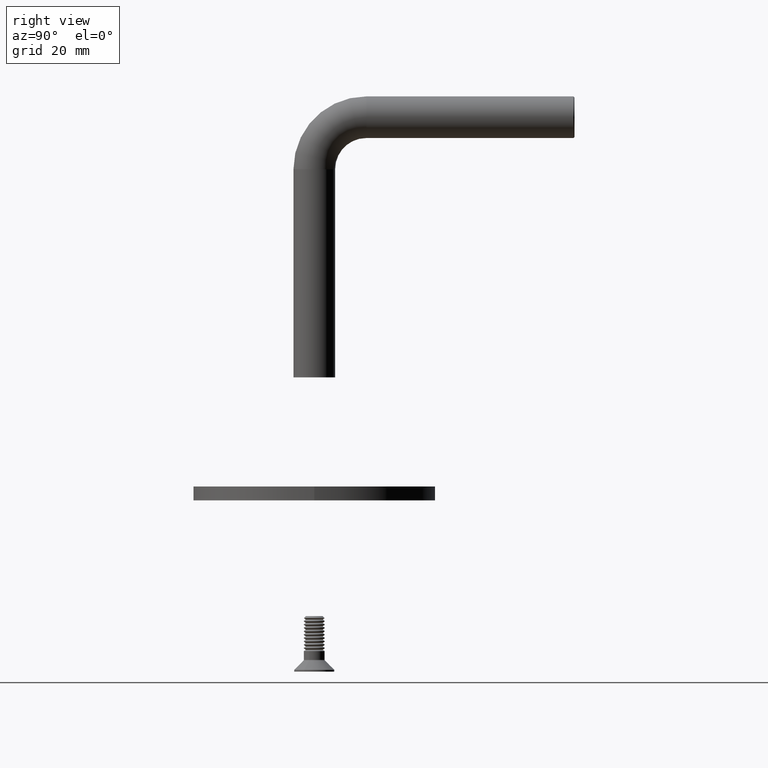
[diagram: clean part render]
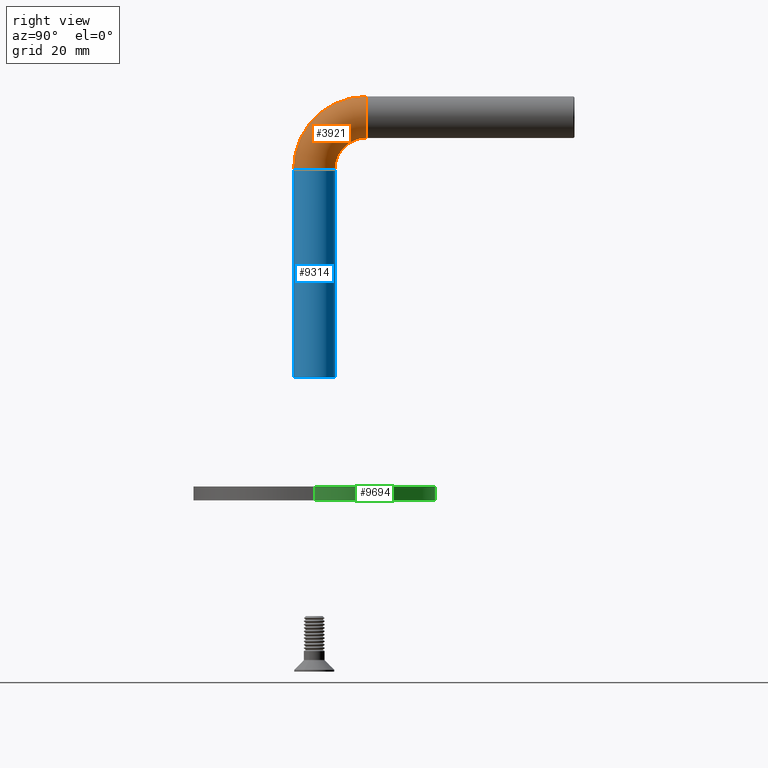
[diagram: same view with three faces highlighted in distinct colors, each labeled with its STEP entity id]
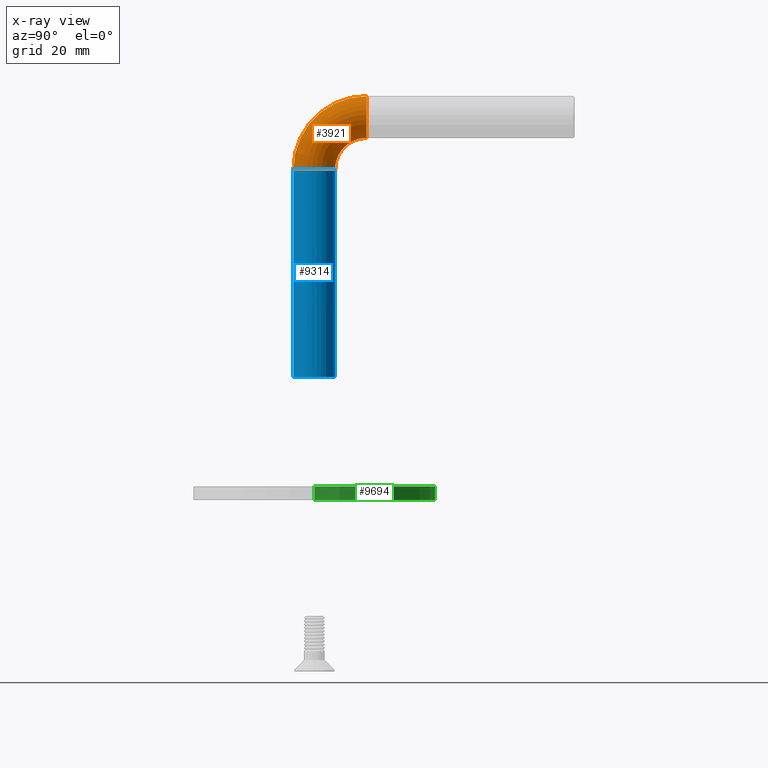
[diagram: x-ray of the same camera — body ghosted, the three highlighted faces saturated]
A machine part, right view with three faces highlighted in distinct colors.
The next image is the same camera in x-ray (body ghosted, the three faces saturated) — at least one of them is partly hidden behind the body in this view.
Their STEP definitions:

[orange] entity #3921 — the highlighted toroidal blend (fillet) surface has major radius 15 mm and minor (blend) radius 6 mm.
#445 = AXIS2_PLACEMENT_3D ( 'NONE', #10446, #6219, #14389 ) ;
#686 = CARTESIAN_POINT ( 'NONE',  ( 0.000000000000000000, 5.999999999999993783, 60.00000000000000000 ) ) ;
#826 = CARTESIAN_POINT ( 'NONE',  ( 0.000000000000000000, 14.99999999999999289, 81.00000000000000000 ) ) ;
#1342 = DIRECTION ( 'NONE',  ( -1.000000000000000000, -0.000000000000000000, 0.000000000000000000 ) ) ;
#1845 = EDGE_CURVE ( 'NONE', #17397, #15188, #8470, .T. ) ;
#1863 = CARTESIAN_POINT ( 'NONE',  ( 7.347880794884124666E-16, -6.000000000000008882, 60.00000000000000000 ) ) ;
#2323 = EDGE_CURVE ( 'NONE', #7381, #17397, #14141, .T. ) ;
#2327 = VERTEX_POINT ( 'NONE', #686 ) ;
#2420 = DIRECTION ( 'NONE',  ( 0.000000000000000000, 0.000000000000000000, 1.000000000000000000 ) ) ;
#2477 = CARTESIAN_POINT ( 'NONE',  ( 0.000000000000000000, -6.938893903907228378E-15, 60.00000000000000000 ) ) ;
#3034 = AXIS2_PLACEMENT_3D ( 'NONE', #14983, #1342, #16353 ) ;
#3622 = CARTESIAN_POINT ( 'NONE',  ( 0.000000000000000000, 14.99999999999999289, 60.00000000000000000 ) ) ;
#3921 = ADVANCED_FACE ( 'NONE', ( #17479 ), #9026, .T. ) ;
#4510 = ORIENTED_EDGE ( 'NONE', *, *, #2323, .F. ) ;
#5715 = AXIS2_PLACEMENT_3D ( 'NONE', #17020, #11459, #7583 ) ;
#5877 = EDGE_CURVE ( 'NONE', #2327, #15188, #12430, .T. ) ;
#6219 = DIRECTION ( 'NONE',  ( 0.000000000000000000, 1.000000000000000000, 6.123233995736766036E-17 ) ) ;
#7381 = VERTEX_POINT ( 'NONE', #1863 ) ;
#7510 = DIRECTION ( 'NONE',  ( 0.000000000000000000, 0.000000000000000000, 1.000000000000000000 ) ) ;
#7583 = DIRECTION ( 'NONE',  ( 0.000000000000000000, 0.000000000000000000, 1.000000000000000000 ) ) ;
#8470 = CIRCLE ( 'NONE', #445, 6.000000000000000888 ) ;
#8560 = AXIS2_PLACEMENT_3D ( 'NONE', #3622, #15691, #7510 ) ;
#9026 = TOROIDAL_SURFACE ( 'NONE', #3034, 15.00000000000000000, 6.000000000000000888 ) ;
#9969 = ORIENTED_EDGE ( 'NONE', *, *, #15746, .T. ) ;
#10446 = CARTESIAN_POINT ( 'NONE',  ( 0.000000000000000000, 14.99999999999999289, 75.00000000000000000 ) ) ;
#11459 = DIRECTION ( 'NONE',  ( -1.000000000000000000, -0.000000000000000000, 0.000000000000000000 ) ) ;
#11892 = DIRECTION ( 'NONE',  ( 1.000000000000000000, 0.000000000000000000, 0.000000000000000000 ) ) ;
#12333 = ORIENTED_EDGE ( 'NONE', *, *, #5877, .T. ) ;
#12430 = CIRCLE ( 'NONE', #5715, 8.999999999999994671 ) ;
#12785 = AXIS2_PLACEMENT_3D ( 'NONE', #2477, #2420, #11892 ) ;
#14141 = CIRCLE ( 'NONE', #8560, 21.00000000000000355 ) ;
#14389 = DIRECTION ( 'NONE',  ( 1.000000000000000000, 0.000000000000000000, 0.000000000000000000 ) ) ;
#14800 = CARTESIAN_POINT ( 'NONE',  ( 7.347880794884113820E-16, 14.99999999999999289, 68.99999999999998579 ) ) ;
#14983 = CARTESIAN_POINT ( 'NONE',  ( 0.000000000000000000, 14.99999999999999289, 60.00000000000000000 ) ) ;
#15188 = VERTEX_POINT ( 'NONE', #14800 ) ;
#15691 = DIRECTION ( 'NONE',  ( -1.000000000000000000, -0.000000000000000000, 0.000000000000000000 ) ) ;
#15746 = EDGE_CURVE ( 'NONE', #7381, #2327, #16695, .T. ) ;
#16353 = DIRECTION ( 'NONE',  ( 0.000000000000000000, 0.000000000000000000, 1.000000000000000000 ) ) ;
#16695 = CIRCLE ( 'NONE', #12785, 6.000000000000000888 ) ;
#16742 = EDGE_LOOP ( 'NONE', ( #4510, #9969, #12333, #16917 ) ) ;
#16917 = ORIENTED_EDGE ( 'NONE', *, *, #1845, .F. ) ;
#17020 = CARTESIAN_POINT ( 'NONE',  ( 7.347880794884120722E-16, 14.99999999999999289, 60.00000000000000000 ) ) ;
#17397 = VERTEX_POINT ( 'NONE', #826 ) ;
#17479 = FACE_OUTER_BOUND ( 'NONE', #16742, .T. ) ;

[blue] entity #9314 — the highlighted cylindrical surface (edge-blend (fillet) strip) has radius 6 mm, axis along (0, 0, -1).
#17 = CARTESIAN_POINT ( 'NONE',  ( 0.000000000000000000, 0.000000000000000000, 0.000000000000000000 ) ) ;
#686 = CARTESIAN_POINT ( 'NONE',  ( 0.000000000000000000, 5.999999999999993783, 60.00000000000000000 ) ) ;
#1323 = LINE ( 'NONE', #1426, #8053 ) ;
#1426 = CARTESIAN_POINT ( 'NONE',  ( 0.000000000000000000, 5.999999999999993783, 60.00000000000000000 ) ) ;
#1863 = CARTESIAN_POINT ( 'NONE',  ( 7.347880794884124666E-16, -6.000000000000008882, 60.00000000000000000 ) ) ;
#2327 = VERTEX_POINT ( 'NONE', #686 ) ;
#2420 = DIRECTION ( 'NONE',  ( 0.000000000000000000, 0.000000000000000000, 1.000000000000000000 ) ) ;
#2477 = CARTESIAN_POINT ( 'NONE',  ( 0.000000000000000000, -6.938893903907228378E-15, 60.00000000000000000 ) ) ;
#2733 = LINE ( 'NONE', #4275, #13745 ) ;
#2765 = DIRECTION ( 'NONE',  ( -0.000000000000000000, 1.156482317317871478E-16, -1.000000000000000000 ) ) ;
#3011 = AXIS2_PLACEMENT_3D ( 'NONE', #17, #17422, #8977 ) ;
#4275 = CARTESIAN_POINT ( 'NONE',  ( 7.347880794884120722E-16, -6.000000000000007994, 60.00000000000000000 ) ) ;
#5627 = DIRECTION ( 'NONE',  ( -0.000000000000000000, 1.156482317317871478E-16, -1.000000000000000000 ) ) ;
#6617 = EDGE_CURVE ( 'NONE', #8074, #10191, #16840, .T. ) ;
#6742 = DIRECTION ( 'NONE',  ( 0.000000000000000000, 1.000000000000000000, 0.000000000000000000 ) ) ;
#7199 = CARTESIAN_POINT ( 'NONE',  ( 0.000000000000000000, 6.000000000000001776, 0.000000000000000000 ) ) ;
#7381 = VERTEX_POINT ( 'NONE', #1863 ) ;
#8053 = VECTOR ( 'NONE', #2765, 1000.000000000000000 ) ;
#8074 = VERTEX_POINT ( 'NONE', #11728 ) ;
#8089 = CARTESIAN_POINT ( 'NONE',  ( 0.000000000000000000, -6.938893903907228378E-15, 60.00000000000000000 ) ) ;
#8977 = DIRECTION ( 'NONE',  ( 1.000000000000000000, 0.000000000000000000, 0.000000000000000000 ) ) ;
#9314 = ADVANCED_FACE ( 'NONE', ( #16163 ), #13636, .T. ) ;
#9610 = ORIENTED_EDGE ( 'NONE', *, *, #6617, .T. ) ;
#10008 = AXIS2_PLACEMENT_3D ( 'NONE', #8089, #14794, #6742 ) ;
#10191 = VERTEX_POINT ( 'NONE', #7199 ) ;
#11443 = ORIENTED_EDGE ( 'NONE', *, *, #15746, .F. ) ;
#11661 = EDGE_CURVE ( 'NONE', #2327, #10191, #1323, .T. ) ;
#11728 = CARTESIAN_POINT ( 'NONE',  ( 7.347880794884120722E-16, -6.000000000000000888, 0.000000000000000000 ) ) ;
#11892 = DIRECTION ( 'NONE',  ( 1.000000000000000000, 0.000000000000000000, 0.000000000000000000 ) ) ;
#12598 = EDGE_LOOP ( 'NONE', ( #11443, #15310, #9610, #12615 ) ) ;
#12615 = ORIENTED_EDGE ( 'NONE', *, *, #11661, .F. ) ;
#12785 = AXIS2_PLACEMENT_3D ( 'NONE', #2477, #2420, #11892 ) ;
#13636 = CYLINDRICAL_SURFACE ( 'NONE', #10008, 6.000000000000000888 ) ;
#13745 = VECTOR ( 'NONE', #5627, 1000.000000000000000 ) ;
#14299 = EDGE_CURVE ( 'NONE', #7381, #8074, #2733, .T. ) ;
#14794 = DIRECTION ( 'NONE',  ( -0.000000000000000000, 1.156482317317871478E-16, -1.000000000000000000 ) ) ;
#15310 = ORIENTED_EDGE ( 'NONE', *, *, #14299, .T. ) ;
#15746 = EDGE_CURVE ( 'NONE', #7381, #2327, #16695, .T. ) ;
#16163 = FACE_OUTER_BOUND ( 'NONE', #12598, .T. ) ;
#16695 = CIRCLE ( 'NONE', #12785, 6.000000000000000888 ) ;
#16840 = CIRCLE ( 'NONE', #3011, 6.000000000000000888 ) ;
#17422 = DIRECTION ( 'NONE',  ( 0.000000000000000000, 0.000000000000000000, 1.000000000000000000 ) ) ;

[green] entity #9694 — the highlighted cylindrical surface (partial cylindrical patch) has radius 35 mm, axis along (-0, -0, -1).
#197 = VERTEX_POINT ( 'NONE', #8814 ) ;
#653 = DIRECTION ( 'NONE',  ( 1.000000000000000000, 0.000000000000000000, 0.000000000000000000 ) ) ;
#926 = DIRECTION ( 'NONE',  ( -0.000000000000000000, -0.000000000000000000, -1.000000000000000000 ) ) ;
#1418 = CIRCLE ( 'NONE', #3932, 35.00000000000000711 ) ;
#2104 = CARTESIAN_POINT ( 'NONE',  ( -35.00000000000000711, 0.000000000000000000, 0.000000000000000000 ) ) ;
#2738 = AXIS2_PLACEMENT_3D ( 'NONE', #7570, #926, #15751 ) ;
#2799 = VECTOR ( 'NONE', #12493, 1000.000000000000000 ) ;
#3503 = EDGE_CURVE ( 'NONE', #11536, #13129, #8601, .T. ) ;
#3906 = VECTOR ( 'NONE', #17183, 1000.000000000000000 ) ;
#3932 = AXIS2_PLACEMENT_3D ( 'NONE', #9773, #5852, #15320 ) ;
#4394 = EDGE_CURVE ( 'NONE', #197, #11568, #1418, .T. ) ;
#4457 = ORIENTED_EDGE ( 'NONE', *, *, #4394, .F. ) ;
#5425 = CARTESIAN_POINT ( 'NONE',  ( -35.00000000000000711, 0.000000000000000000, 4.000000000000000000 ) ) ;
#5813 = ORIENTED_EDGE ( 'NONE', *, *, #3503, .T. ) ;
#5852 = DIRECTION ( 'NONE',  ( 0.000000000000000000, 0.000000000000000000, 1.000000000000000000 ) ) ;
#6065 = ORIENTED_EDGE ( 'NONE', *, *, #6937, .T. ) ;
#6902 = ORIENTED_EDGE ( 'NONE', *, *, #10503, .F. ) ;
#6937 = EDGE_CURVE ( 'NONE', #197, #11536, #14701, .T. ) ;
#7142 = EDGE_LOOP ( 'NONE', ( #4457, #6065, #5813, #6902 ) ) ;
#7298 = DIRECTION ( 'NONE',  ( 0.000000000000000000, 0.000000000000000000, 1.000000000000000000 ) ) ;
#7570 = CARTESIAN_POINT ( 'NONE',  ( 0.000000000000000000, 0.000000000000000000, 4.000000000000000000 ) ) ;
#7641 = CARTESIAN_POINT ( 'NONE',  ( 35.00000000000000711, 4.286263797015737285E-15, 4.000000000000000000 ) ) ;
#7680 = FACE_OUTER_BOUND ( 'NONE', #7142, .T. ) ;
#8181 = CARTESIAN_POINT ( 'NONE',  ( -35.00000000000000711, 0.000000000000000000, 4.000000000000000000 ) ) ;
#8601 = CIRCLE ( 'NONE', #17202, 35.00000000000000711 ) ;
#8721 = CARTESIAN_POINT ( 'NONE',  ( 0.000000000000000000, 0.000000000000000000, 0.000000000000000000 ) ) ;
#8814 = CARTESIAN_POINT ( 'NONE',  ( 35.00000000000000711, 4.286263797015737285E-15, 4.000000000000000000 ) ) ;
#9152 = LINE ( 'NONE', #8181, #2799 ) ;
#9694 = ADVANCED_FACE ( 'NONE', ( #7680 ), #13197, .T. ) ;
#9773 = CARTESIAN_POINT ( 'NONE',  ( 0.000000000000000000, 0.000000000000000000, 4.000000000000000000 ) ) ;
#10503 = EDGE_CURVE ( 'NONE', #11568, #13129, #9152, .T. ) ;
#11536 = VERTEX_POINT ( 'NONE', #13297 ) ;
#11568 = VERTEX_POINT ( 'NONE', #5425 ) ;
#12493 = DIRECTION ( 'NONE',  ( -0.000000000000000000, -0.000000000000000000, -1.000000000000000000 ) ) ;
#13129 = VERTEX_POINT ( 'NONE', #2104 ) ;
#13197 = CYLINDRICAL_SURFACE ( 'NONE', #2738, 35.00000000000000711 ) ;
#13297 = CARTESIAN_POINT ( 'NONE',  ( 35.00000000000000711, 4.286263797015737285E-15, 0.000000000000000000 ) ) ;
#14701 = LINE ( 'NONE', #7641, #3906 ) ;
#15320 = DIRECTION ( 'NONE',  ( 1.000000000000000000, 0.000000000000000000, 0.000000000000000000 ) ) ;
#15751 = DIRECTION ( 'NONE',  ( -1.000000000000000000, 0.000000000000000000, 0.000000000000000000 ) ) ;
#17183 = DIRECTION ( 'NONE',  ( -0.000000000000000000, -0.000000000000000000, -1.000000000000000000 ) ) ;
#17202 = AXIS2_PLACEMENT_3D ( 'NONE', #8721, #7298, #653 ) ;